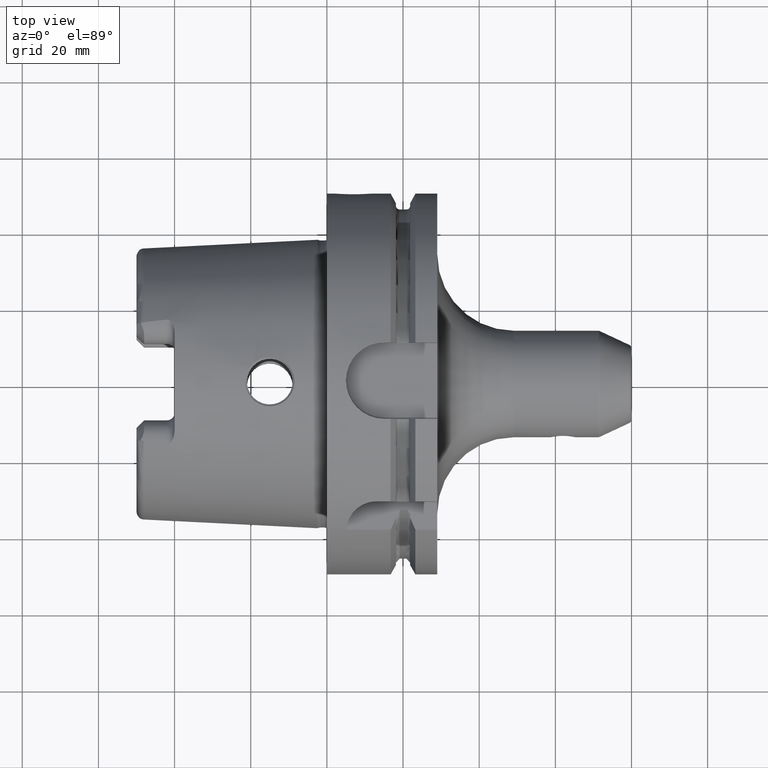
[diagram: clean part render]
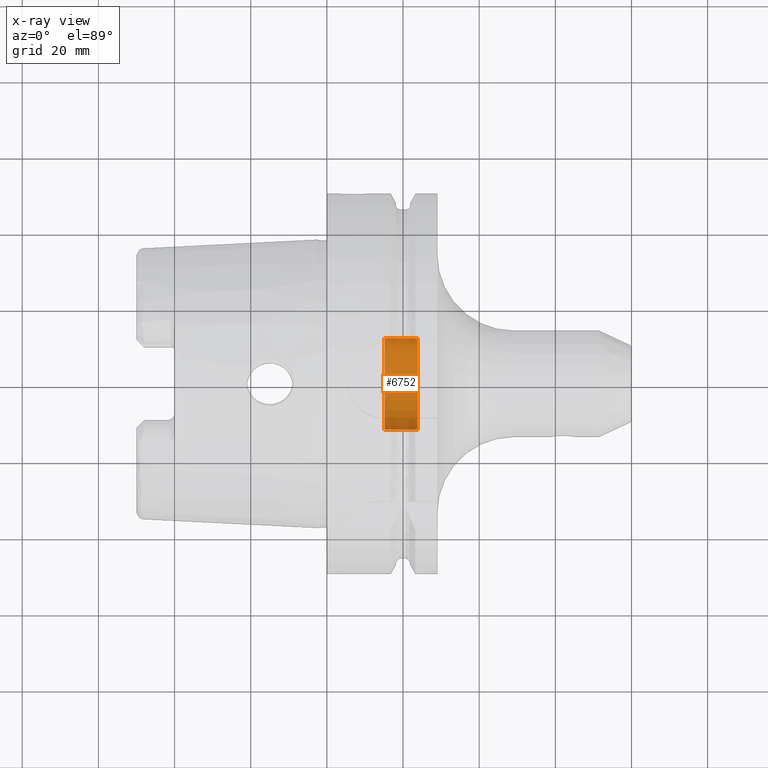
[diagram: x-ray — body ghosted, one internal face saturated and labeled with its STEP entity id]
A machine part, top view, then the same camera in x-ray: the body is ghosted and one INTERNAL B-rep face — a face not visible from any outside direction — is saturated and labeled: STEP entity #6752.
In plain terms, the highlighted cylindrical surface (partial cylindrical patch) has radius 12 mm, axis along (1, 0, 0).
Its self-contained STEP definition (entity closure, byte-faithful):
#6665=CARTESIAN_POINT('',(1.51625E1,0.E0,0.E0));
#6666=DIRECTION('',(1.E0,0.E0,0.E0));
#6667=DIRECTION('',(0.E0,-1.E0,0.E0));
#6668=AXIS2_PLACEMENT_3D('',#6665,#6666,#6667);
#6670=CARTESIAN_POINT('',(2.385262794416E1,0.E0,0.E0));
#6671=DIRECTION('',(-1.E0,0.E0,0.E0));
#6672=DIRECTION('',(0.E0,1.E0,0.E0));
#6673=AXIS2_PLACEMENT_3D('',#6670,#6671,#6672);
#6690=DIRECTION('',(-1.E0,0.E0,0.E0));
#6691=VECTOR('',#6690,8.690127944163E0);
#6692=CARTESIAN_POINT('',(2.385262794416E1,-1.2E1,0.E0));
#6693=LINE('',#6692,#6691);
#6699=DIRECTION('',(-1.E0,0.E0,0.E0));
#6700=VECTOR('',#6699,8.690127944163E0);
#6701=CARTESIAN_POINT('',(2.385262794416E1,1.2E1,0.E0));
#6702=LINE('',#6701,#6700);
#6725=CARTESIAN_POINT('',(1.51625E1,-1.2E1,0.E0));
#6726=CARTESIAN_POINT('',(1.51625E1,1.2E1,0.E0));
#6727=VERTEX_POINT('',#6725);
#6728=VERTEX_POINT('',#6726);
#6729=CARTESIAN_POINT('',(2.385262794416E1,-1.2E1,0.E0));
#6730=CARTESIAN_POINT('',(2.385262794416E1,1.2E1,0.E0));
#6731=VERTEX_POINT('',#6729);
#6732=VERTEX_POINT('',#6730);
#6737=CARTESIAN_POINT('',(-4.847666062263E0,0.E0,0.E0));
#6738=DIRECTION('',(1.E0,0.E0,0.E0));
#6739=DIRECTION('',(0.E0,-1.E0,0.E0));
#6740=AXIS2_PLACEMENT_3D('',#6737,#6738,#6739);
#6741=CYLINDRICAL_SURFACE('',#6740,1.2E1);
#6743=ORIENTED_EDGE('',*,*,#6742,.T.);
#6745=ORIENTED_EDGE('',*,*,#6744,.F.);
#6747=ORIENTED_EDGE('',*,*,#6746,.T.);
#6749=ORIENTED_EDGE('',*,*,#6748,.T.);
#6750=EDGE_LOOP('',(#6743,#6745,#6747,#6749));
#6751=FACE_OUTER_BOUND('',#6750,.F.);
#6752=ADVANCED_FACE('',(#6751),#6741,.F.);
#6669=CIRCLE('',#6668,1.2E1);
#6674=CIRCLE('',#6673,1.2E1);
#6742=EDGE_CURVE('',#6727,#6728,#6669,.T.);
#6744=EDGE_CURVE('',#6732,#6728,#6702,.T.);
#6746=EDGE_CURVE('',#6732,#6731,#6674,.T.);
#6748=EDGE_CURVE('',#6731,#6727,#6693,.T.);